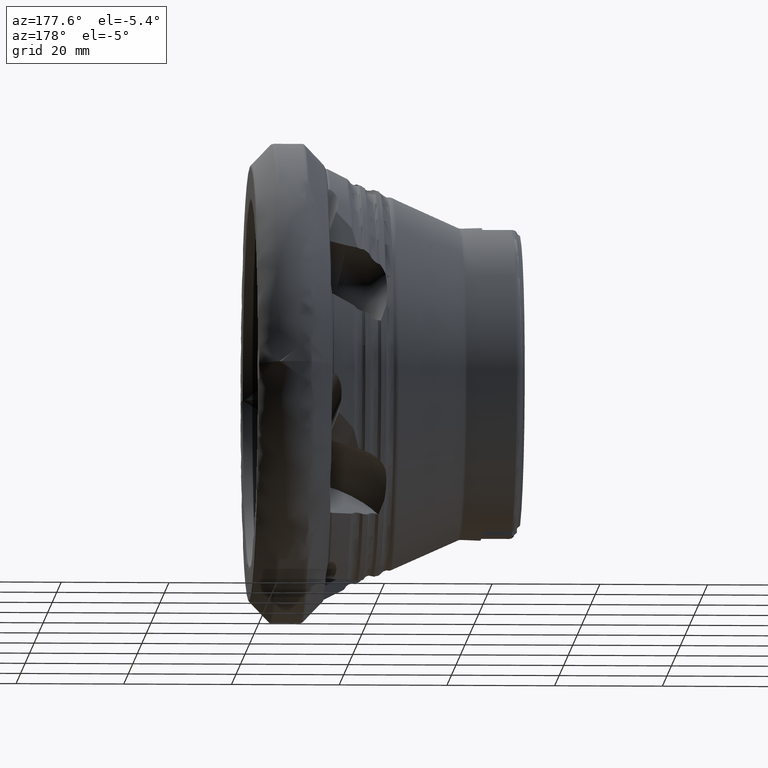
[diagram: clean part render]
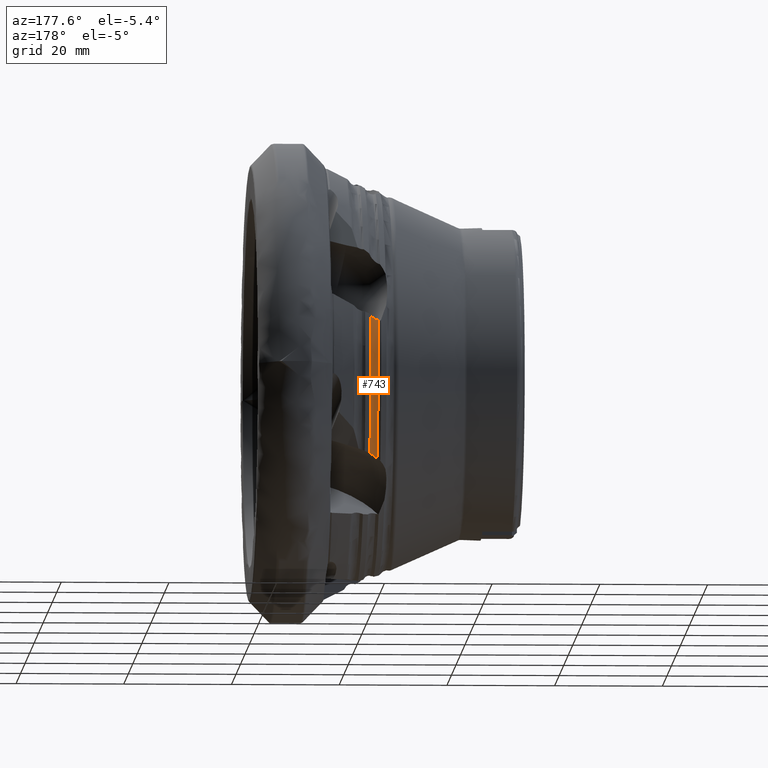
[diagram: same view with one face highlighted and labeled with its STEP entity id]
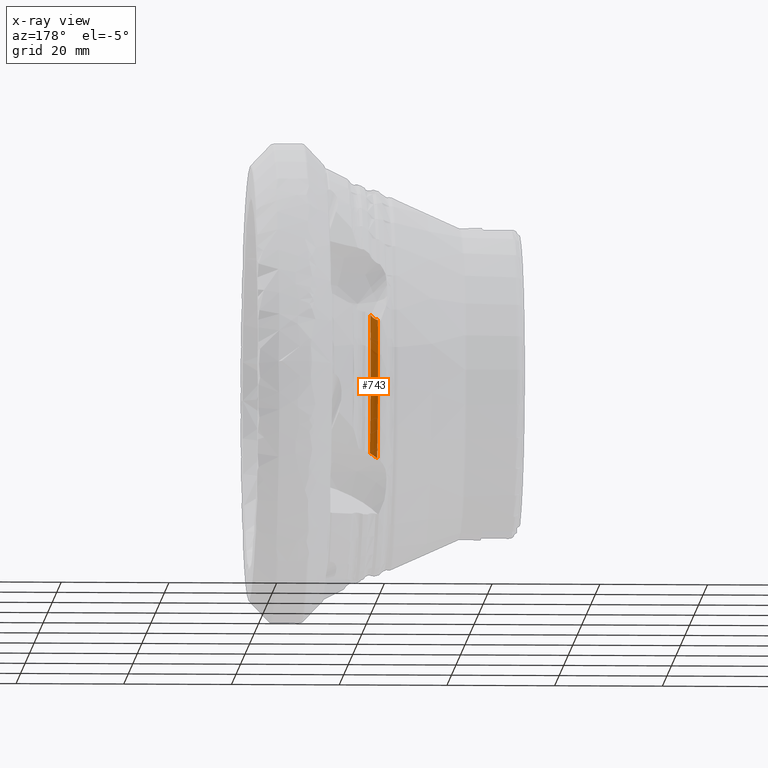
[diagram: x-ray of the same camera — body ghosted, the highlighted face saturated]
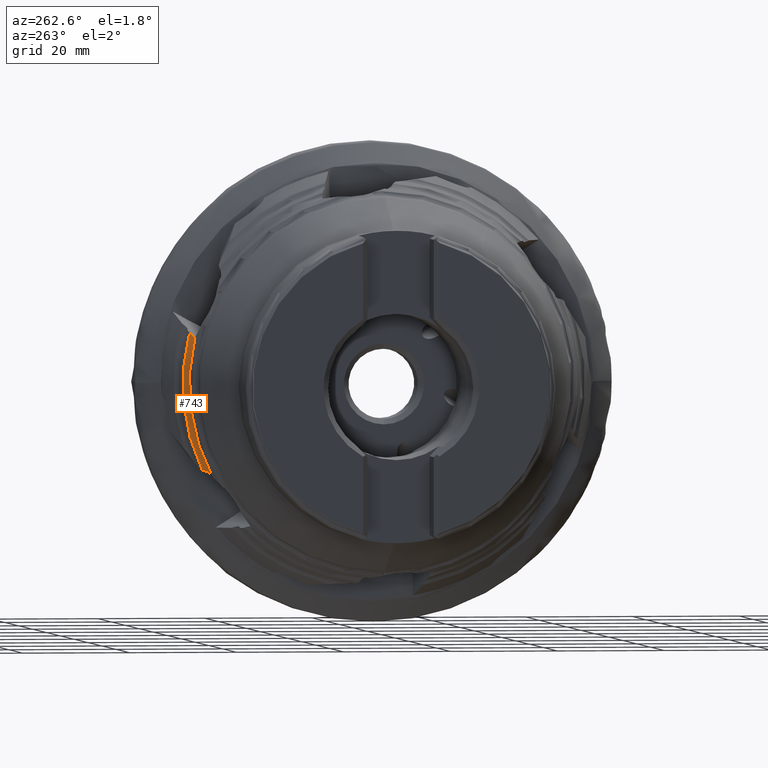
[diagram: same view with one face highlighted and labeled with its STEP entity id]
A machine part, auxiliary view. The second image highlights one B-rep face of the part: STEP entity #743.
The next image is the same camera in x-ray: the body ghosted, the highlighted face saturated — about 0% of this face is hidden behind the body in this view.
A second angle (auxiliary view) of the same face is appended — the face is thin or edge-on in the first view.
In plain terms, the highlighted toroidal blend (fillet) surface has major radius 37.5735 mm and minor (blend) radius 1.5 mm.
Its self-contained STEP definition (entity closure, byte-faithful):
#79 = CARTESIAN_POINT ( 'NONE',  ( -20.10400000000001000, 35.84748374872342700, 9.518758684155878700 ) ) ;
#237 = CIRCLE ( 'NONE', #6166, 36.07350389703909600 ) ;
#359 = TOROIDAL_SURFACE ( 'NONE', #1768, 37.57350389703908900, 1.499999999999994000 ) ;
#428 = CARTESIAN_POINT ( 'NONE',  ( -20.10400000000001000, 33.43795744671373200, -16.04842234594870100 ) ) ;
#448 = VERTEX_POINT ( 'NONE', #2134 ) ;
#743 = ADVANCED_FACE ( 'NONE', ( #5862 ), #359, .F. ) ;
#758 = CARTESIAN_POINT ( 'NONE',  ( -21.52384966647785800, 35.03959987249226800, 8.574620935372827500 ) ) ;
#1105 = DIRECTION ( 'NONE',  ( 0.0000000000000000000, 0.0000000000000000000, -1.000000000000000000 ) ) ;
#1562 = CARTESIAN_POINT ( 'NONE',  ( -21.52384966647785800, 0.0000000000000000000, 0.0000000000000000000 ) ) ;
#1601 = CARTESIAN_POINT ( 'NONE',  ( -20.22802952588246900, 35.59807342243166800, 9.337152717874182900 ) ) ;
#1768 = AXIS2_PLACEMENT_3D ( 'NONE', #8386, #1958, #2896 ) ;
#1855 = VERTEX_POINT ( 'NONE', #7476 ) ;
#1958 = DIRECTION ( 'NONE',  ( 1.000000000000000000, -0.0000000000000000000, -0.0000000000000000000 ) ) ;
#2134 = CARTESIAN_POINT ( 'NONE',  ( -21.52384966647786500, 31.87917102361663500, -16.88242098328013400 ) ) ;
#2775 = CARTESIAN_POINT ( 'NONE',  ( -20.44004762697239000, 32.74057794383041700, -16.18884409489810800 ) ) ;
#2896 = DIRECTION ( 'NONE',  ( 0.0000000000000000000, 0.0000000000000000000, -1.000000000000000000 ) ) ;
#3175 = DIRECTION ( 'NONE',  ( 1.000000000000000000, -0.0000000000000000000, -0.0000000000000000000 ) ) ;
#3245 = DIRECTION ( 'NONE',  ( 0.0000000000000000000, 0.0000000000000000000, -1.000000000000000000 ) ) ;
#3974 = CARTESIAN_POINT ( 'NONE',  ( -20.91412105227606200, 35.10261822007596100, 8.822688345830545800 ) ) ;
#3977 = CARTESIAN_POINT ( 'NONE',  ( -20.10400000000001000, 35.84748374872342700, 9.518758684155878700 ) ) ;
#3978 = CIRCLE ( 'NONE', #8464, 37.08974060305872200 ) ;
#4333 = VERTEX_POINT ( 'NONE', #9089 ) ;
#4358 = ORIENTED_EDGE ( 'NONE', *, *, #9754, .T. ) ;
#4372 = CARTESIAN_POINT ( 'NONE',  ( -20.16052902167599100, 33.24761780228072200, -16.06156330459314000 ) ) ;
#4408 = CARTESIAN_POINT ( 'NONE',  ( -21.37003865673806800, 31.93735117125878600, -16.77255908144145700 ) ) ;
#4677 = ORIENTED_EDGE ( 'NONE', *, *, #5954, .F. ) ;
#4731 = EDGE_LOOP ( 'NONE', ( #4677, #4358, #7677, #8132 ) ) ;
#4760 = CARTESIAN_POINT ( 'NONE',  ( -20.41331775425364400, 35.38808369178182300, 9.155984449420213200 ) ) ;
#5174 = CARTESIAN_POINT ( 'NONE',  ( -20.93920380093486600, 32.21224772777912900, -16.48288768541499400 ) ) ;
#5204 = CARTESIAN_POINT ( 'NONE',  ( -20.24227223416432200, 33.06958960505581800, -16.09378677902903100 ) ) ;
#5286 = CARTESIAN_POINT ( 'NONE',  ( -21.52384966647786500, 31.87917102361663500, -16.88242098328013400 ) ) ;
#5603 = B_SPLINE_CURVE_WITH_KNOTS ( 'NONE', 3,
 ( #79, #9634, #1601, #4760, #8723, #10281, #3974, #8044, #9525, #758 ),
 .UNSPECIFIED., .F., .F.,
 ( 4, 2, 2, 2, 4 ),
 ( 6.457612958726666200E-007, 0.0004971457329299621100, 0.0009936457045640516600, 0.001490145676198141100, 0.001986645647832230600 ),
 .UNSPECIFIED. ) ;
#5756 = VERTEX_POINT ( 'NONE', #3977 ) ;
#5862 = FACE_OUTER_BOUND ( 'NONE', #4731, .T. ) ;
#5954 = EDGE_CURVE ( 'NONE', #448, #4333, #6681, .T. ) ;
#5996 = DIRECTION ( 'NONE',  ( 1.000000000000000000, -0.0000000000000000000, -0.0000000000000000000 ) ) ;
#6162 = EDGE_CURVE ( 'NONE', #5756, #1855, #5603, .T. ) ;
#6166 = AXIS2_PLACEMENT_3D ( 'NONE', #1562, #3175, #3245 ) ;
#6681 = B_SPLINE_CURVE_WITH_KNOTS ( 'NONE', 3,
 ( #5286, #4408, #6835, #5174, #9201, #7529, #2775, #5204, #4372, #428 ),
 .UNSPECIFIED., .F., .F.,
 ( 4, 2, 2, 2, 4 ),
 ( 0.0007247944377308680000, 0.001310731252228895200, 0.001896668066726922400, 0.002482604881224949600, 0.003068541695722976800 ),
 .UNSPECIFIED. ) ;
#6835 = CARTESIAN_POINT ( 'NONE',  ( -21.22200509975792200, 32.01718051361231700, -16.67009300036922400 ) ) ;
#7476 = CARTESIAN_POINT ( 'NONE',  ( -21.52384966647785800, 35.03959987249226800, 8.574620935372827500 ) ) ;
#7529 = CARTESIAN_POINT ( 'NONE',  ( -20.55320903705172200, 32.59390724795510200, -16.25018504183927700 ) ) ;
#7677 = ORIENTED_EDGE ( 'NONE', *, *, #6162, .F. ) ;
#8044 = CARTESIAN_POINT ( 'NONE',  ( -21.20802644043164500, 35.03883644445552600, 8.684596427667182500 ) ) ;
#8132 = ORIENTED_EDGE ( 'NONE', *, *, #9997, .F. ) ;
#8386 = CARTESIAN_POINT ( 'NONE',  ( -21.52384966647785800, 0.0000000000000000000, 0.0000000000000000000 ) ) ;
#8464 = AXIS2_PLACEMENT_3D ( 'NONE', #9836, #5996, #1105 ) ;
#8723 = CARTESIAN_POINT ( 'NONE',  ( -20.52436565575148500, 35.29851961816045500, 9.067520543921626000 ) ) ;
#9089 = CARTESIAN_POINT ( 'NONE',  ( -20.10400000000001000, 33.43795744671373200, -16.04842234594870100 ) ) ;
#9201 = CARTESIAN_POINT ( 'NONE',  ( -20.80221731596467900, 32.32979175089870700, -16.39676426657955900 ) ) ;
#9525 = CARTESIAN_POINT ( 'NONE',  ( -21.36626281573948200, 35.02772982473419500, 8.623127070751389000 ) ) ;
#9634 = CARTESIAN_POINT ( 'NONE',  ( -20.15528594330121200, 35.71587448144926900, 9.427879042828355000 ) ) ;
#9754 = EDGE_CURVE ( 'NONE', #448, #1855, #237, .T. ) ;
#9836 = CARTESIAN_POINT ( 'NONE',  ( -20.10400000000000600, 0.0000000000000000000, 0.0000000000000000000 ) ) ;
#9997 = EDGE_CURVE ( 'NONE', #4333, #5756, #3978, .T. ) ;
#10281 = CARTESIAN_POINT ( 'NONE',  ( -20.77409334939315500, 35.15596616030867900, 8.901207454318555500 ) ) ;